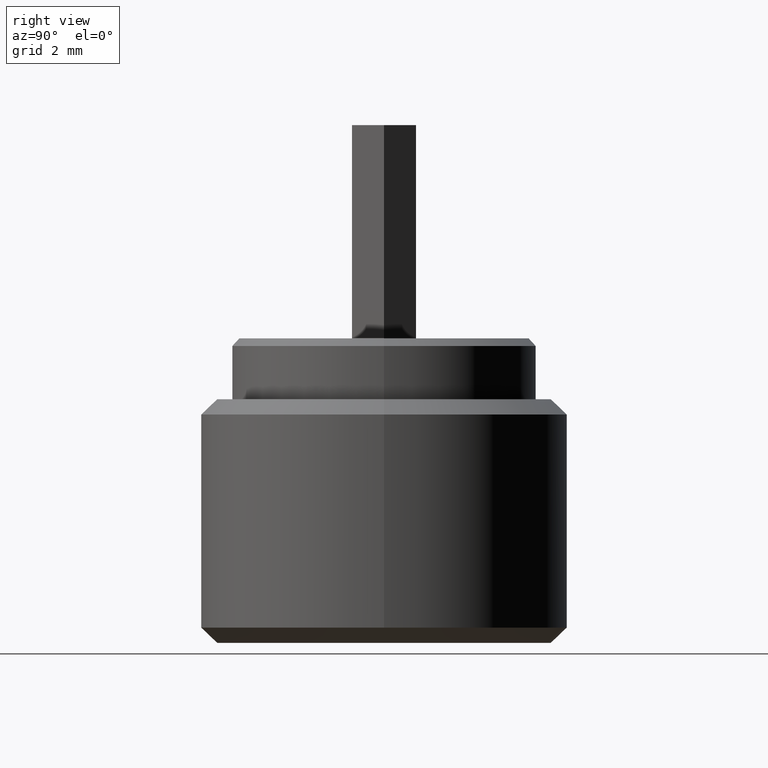
[diagram: clean part render]
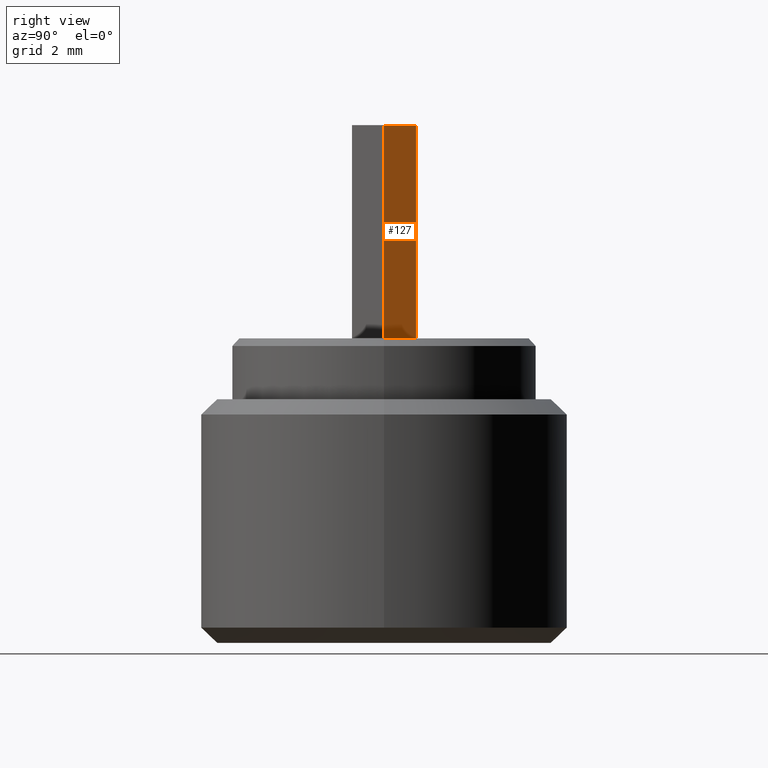
[diagram: same view with one face highlighted and labeled with its STEP entity id]
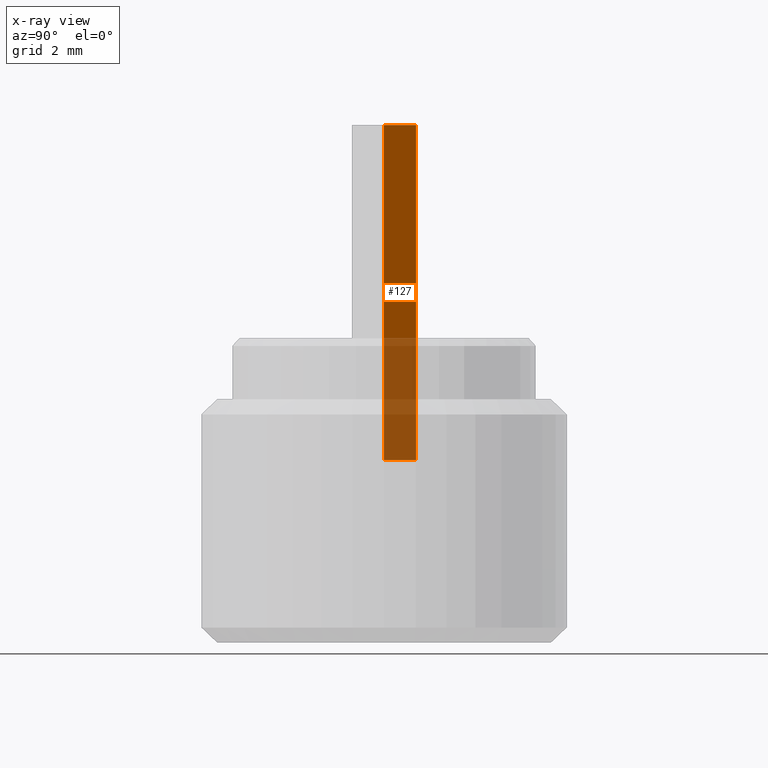
[diagram: x-ray of the same camera — body ghosted, the highlighted face saturated]
A machine part, right view. The second image highlights one B-rep face of the part: STEP entity #127.
The next image is the same camera in x-ray: the body ghosted, the highlighted face saturated — about 36% of this face is hidden behind the body in this view.
In plain terms, the highlighted planar face has unit normal (-0.866, -0.5, 0).
Its self-contained STEP definition (entity closure, byte-faithful):
#3 = LINE ( 'NONE', #767, #904 ) ;
#50 = CARTESIAN_POINT ( 'NONE',  ( 0.6062177826491099708, 1.049999999999998934, 17.00000000000000000 ) ) ;
#62 = ORIENTED_EDGE ( 'NONE', *, *, #929, .F. ) ;
#69 = VECTOR ( 'NONE', #195, 1000.000000000000114 ) ;
#94 = VERTEX_POINT ( 'NONE', #393 ) ;
#127 = ADVANCED_FACE ( 'NONE', ( #609 ), #920, .F. ) ;
#134 = DIRECTION ( 'NONE',  ( -0.000000000000000000, -0.000000000000000000, -1.000000000000000000 ) ) ;
#163 = ORIENTED_EDGE ( 'NONE', *, *, #986, .F. ) ;
#195 = DIRECTION ( 'NONE',  ( -0.4999999999999977240, 0.8660254037844398178, 0.000000000000000000 ) ) ;
#257 = CARTESIAN_POINT ( 'NONE',  ( 1.212435565298214390, -3.035766082959412415E-15, 17.00000000000000000 ) ) ;
#317 = CARTESIAN_POINT ( 'NONE',  ( 1.212435565298214390, -3.035766082959412415E-15, 17.00000000000000000 ) ) ;
#324 = VERTEX_POINT ( 'NONE', #727 ) ;
#336 = LINE ( 'NONE', #257, #69 ) ;
#363 = LINE ( 'NONE', #50, #633 ) ;
#393 = CARTESIAN_POINT ( 'NONE',  ( 1.212435565298214390, -3.035766082959412415E-15, 17.00000000000000000 ) ) ;
#444 = CARTESIAN_POINT ( 'NONE',  ( 1.212435565298214390, -3.035766082959412415E-15, 6.000000000000000000 ) ) ;
#519 = DIRECTION ( 'NONE',  ( 0.4999999999999977796, -0.8660254037844398178, 0.000000000000000000 ) ) ;
#531 = VERTEX_POINT ( 'NONE', #444 ) ;
#547 = LINE ( 'NONE', #866, #548 ) ;
#548 = VECTOR ( 'NONE', #819, 1000.000000000000114 ) ;
#556 = EDGE_CURVE ( 'NONE', #94, #531, #3, .T. ) ;
#602 = ORIENTED_EDGE ( 'NONE', *, *, #968, .T. ) ;
#609 = FACE_OUTER_BOUND ( 'NONE', #699, .T. ) ;
#633 = VECTOR ( 'NONE', #134, 1000.000000000000000 ) ;
#637 = CARTESIAN_POINT ( 'NONE',  ( 0.6062177826491099708, 1.049999999999998934, 6.000000000000000000 ) ) ;
#699 = EDGE_LOOP ( 'NONE', ( #602, #163, #62, #877 ) ) ;
#727 = CARTESIAN_POINT ( 'NONE',  ( 0.6062177826491099708, 1.049999999999998934, 17.00000000000000000 ) ) ;
#767 = CARTESIAN_POINT ( 'NONE',  ( 1.212435565298214390, -3.035766082959412415E-15, 17.00000000000000000 ) ) ;
#810 = AXIS2_PLACEMENT_3D ( 'NONE', #317, #908, #519 ) ;
#819 = DIRECTION ( 'NONE',  ( -0.4999999999999977240, 0.8660254037844398178, 0.000000000000000000 ) ) ;
#866 = CARTESIAN_POINT ( 'NONE',  ( 1.212435565298214390, -3.035766082959412415E-15, 6.000000000000000000 ) ) ;
#873 = VERTEX_POINT ( 'NONE', #637 ) ;
#877 = ORIENTED_EDGE ( 'NONE', *, *, #556, .T. ) ;
#904 = VECTOR ( 'NONE', #983, 1000.000000000000000 ) ;
#908 = DIRECTION ( 'NONE',  ( -0.8660254037844399289, -0.4999999999999978351, 0.000000000000000000 ) ) ;
#920 = PLANE ( 'NONE',  #810 ) ;
#929 = EDGE_CURVE ( 'NONE', #94, #324, #336, .T. ) ;
#968 = EDGE_CURVE ( 'NONE', #531, #873, #547, .T. ) ;
#983 = DIRECTION ( 'NONE',  ( -0.000000000000000000, -0.000000000000000000, -1.000000000000000000 ) ) ;
#986 = EDGE_CURVE ( 'NONE', #324, #873, #363, .T. ) ;